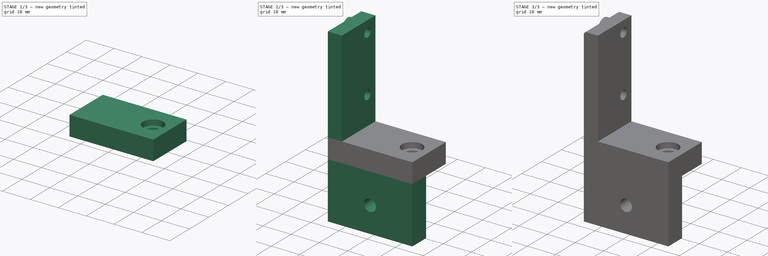
[diagram: build sequence overview — one tinted view per stage of 3, left to right]
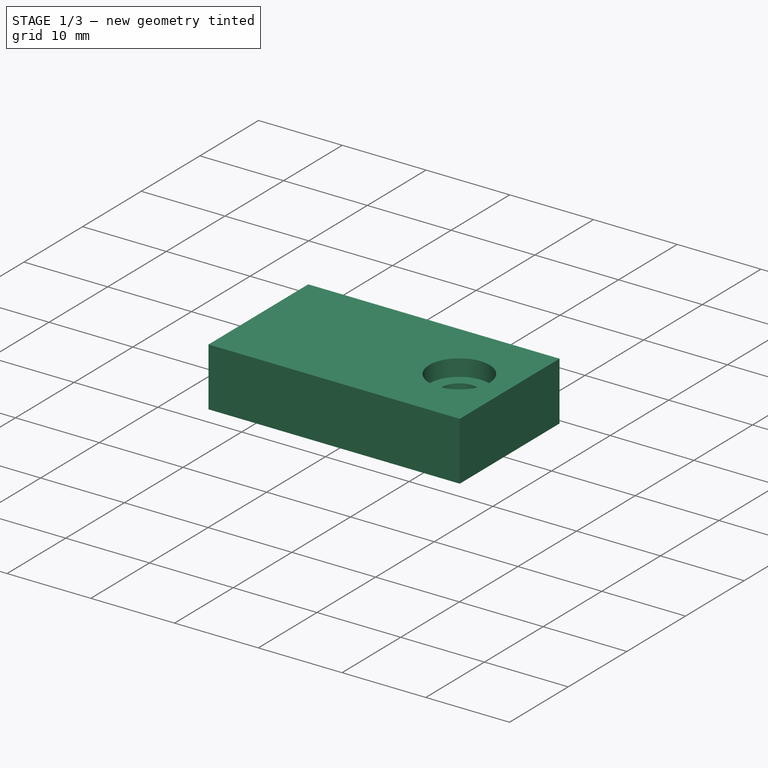
[diagram: stage 1 of 3 — iso view after this stage's code; geometry added in this stage tinted green]
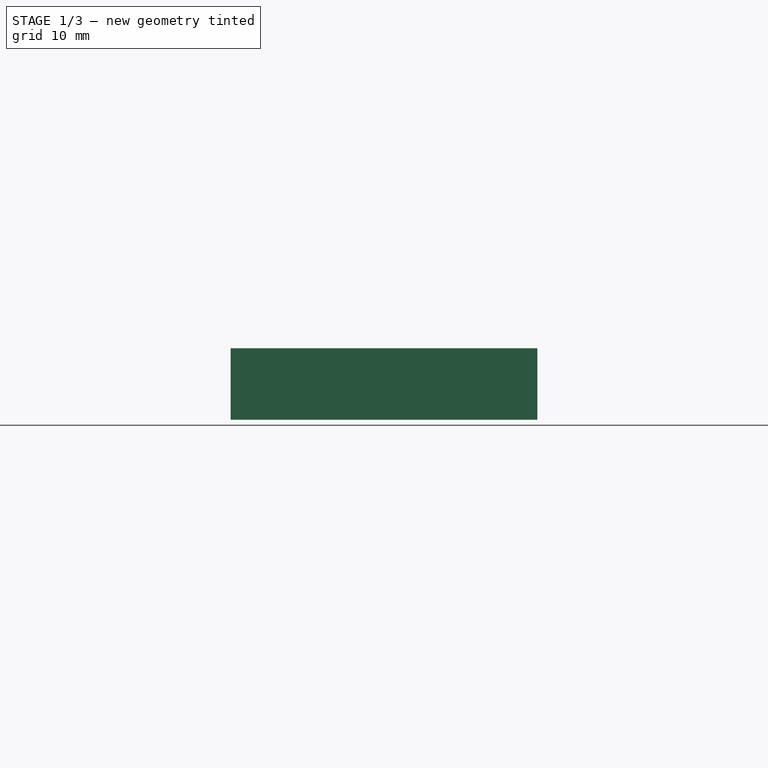
[diagram: stage 1 of 3 — front view after this stage's code; geometry added in this stage tinted green]
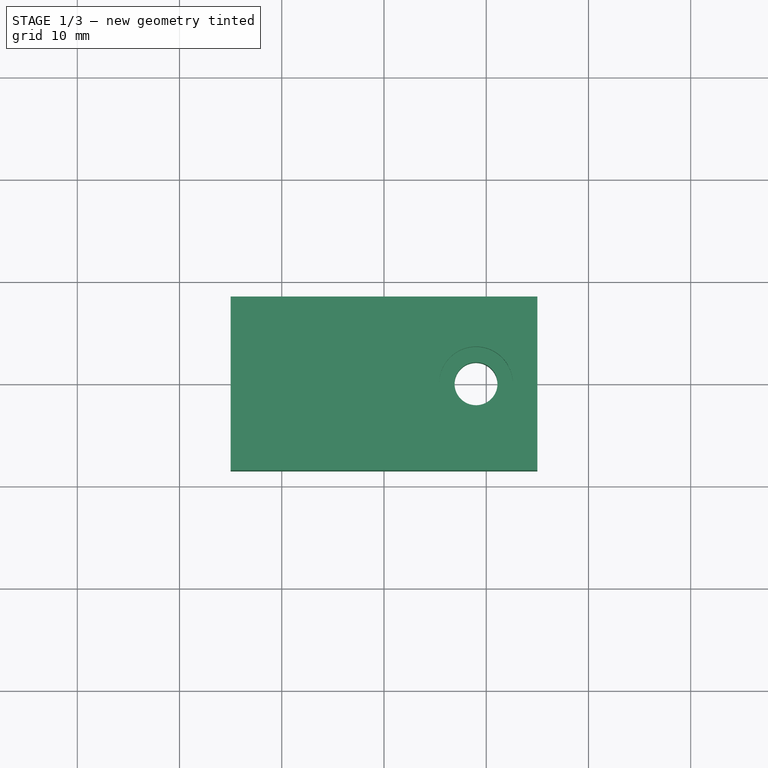
[diagram: stage 1 of 3 — top view after this stage's code; geometry added in this stage tinted green]
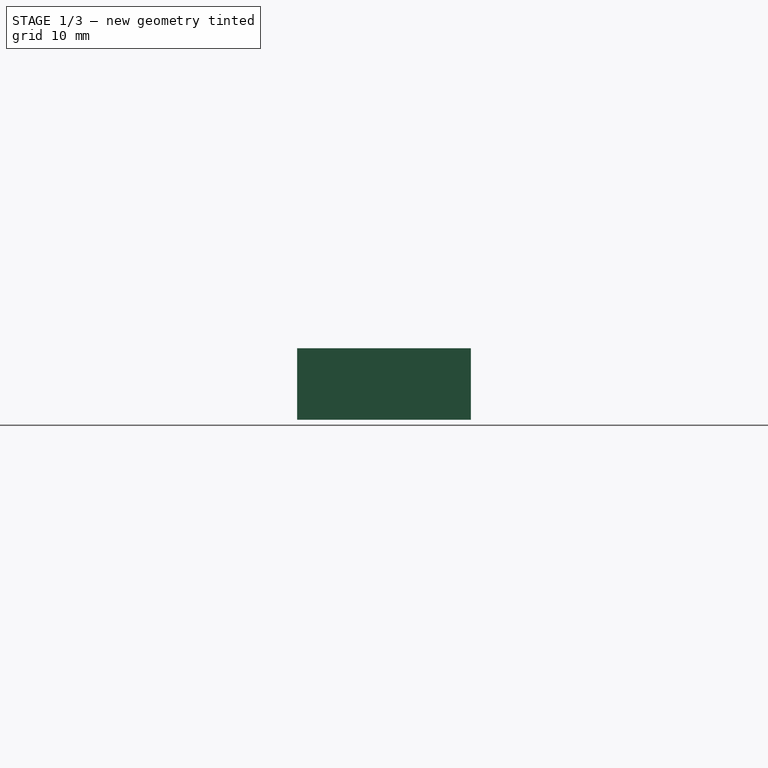
[diagram: stage 1 of 3 — right view after this stage's code; geometry added in this stage tinted green]
FCSTD DOCUMENT  (FreeCAD 0.16R6705 (Git))
Label: z-endstop-mount17
License: All rights reserved
LicenseURL: http://de.wikipedia.org/wiki/Alle_Rechte_vorbehalten
objects: Sketcher::SketchObject×6, PartDesign::Pad×4, PartDesign::Pocket×2, Part::Fillet×1
note: 19 computed .brp shape members not serialized (recipe doc carries the construction recipe); baked Part::Feature solids carry a one-line shape summary decoded from their .brp

FEATURE [Sketcher::SketchObject] Sketch
  sketch-geometry (5):
    g0: LineSegment StartX=-15 StartY=8.5 StartZ=0 EndX=15 EndY=8.5 EndZ=0
    g1: LineSegment StartX=15 StartY=8.5 StartZ=0 EndX=15 EndY=-8.5 EndZ=0
    g2: LineSegment StartX=15 StartY=-8.5 StartZ=0 EndX=-15 EndY=-8.5 EndZ=0
    g3: LineSegment StartX=-15 StartY=-8.5 StartZ=0 EndX=-15 EndY=8.5 EndZ=0
    g4: Circle CenterX=9 CenterY=0 CenterZ=0 NormalX=0 NormalY=0 NormalZ=1 Radius=2.1
  constraints (15):
    c: Coincident(g0,g1)
    c: Coincident(g1,g2)
    c: Coincident(g2,g3)
    c: Coincident(g3,g0)
    c: Horizontal(g0)
    c: Horizontal(g2)
    c: Vertical(g1)
    c: Vertical(g3)
    c: Symmetric(g1,g2,g-2)
    c: Symmetric(g0,g1,g-1)
    c: DistanceY(g3,g3) = 17
    c: PointOnObject(g4,g-1)
    c: Radius(g4) = 2.1
    c: DistanceX(g4,g0) = 6
    c: DistanceX(g0,g0) = 30
FEATURE [PartDesign::Pad] Pad
  Length = 7
  Length2 = 100
  Sketch = -> Sketch
  Type = 0
FEATURE [Sketcher::SketchObject] Sketch001
  ExternalGeometry = -> [Pad]
  Placement = pos=(0,0,7) rot=(0,0,1;0rad)
  Support = -> Pad [Face7]
  sketch-geometry (1):
    g0: Circle CenterX=9 CenterY=0 CenterZ=0 NormalX=0 NormalY=0 NormalZ=1 Radius=3.6
  constraints (2):
    c: Coincident(g0,g-3)
    c: Radius(g0) = 3.6
FEATURE [PartDesign::Pocket] Pocket
  Length = 2
  Sketch = -> Sketch001
  Type = 0
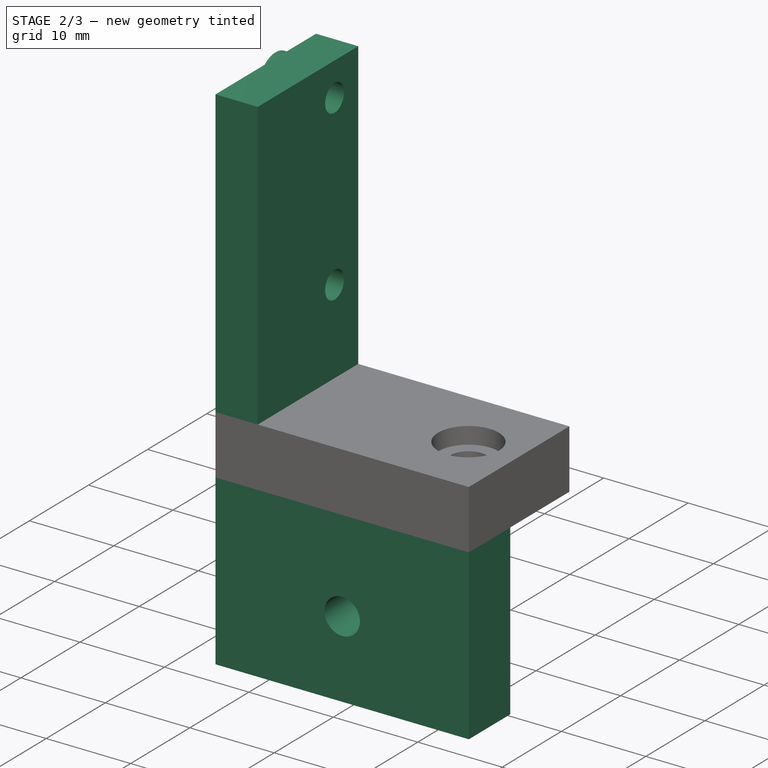
[diagram: stage 2 of 3 — iso view after this stage's code; geometry added in this stage tinted green]
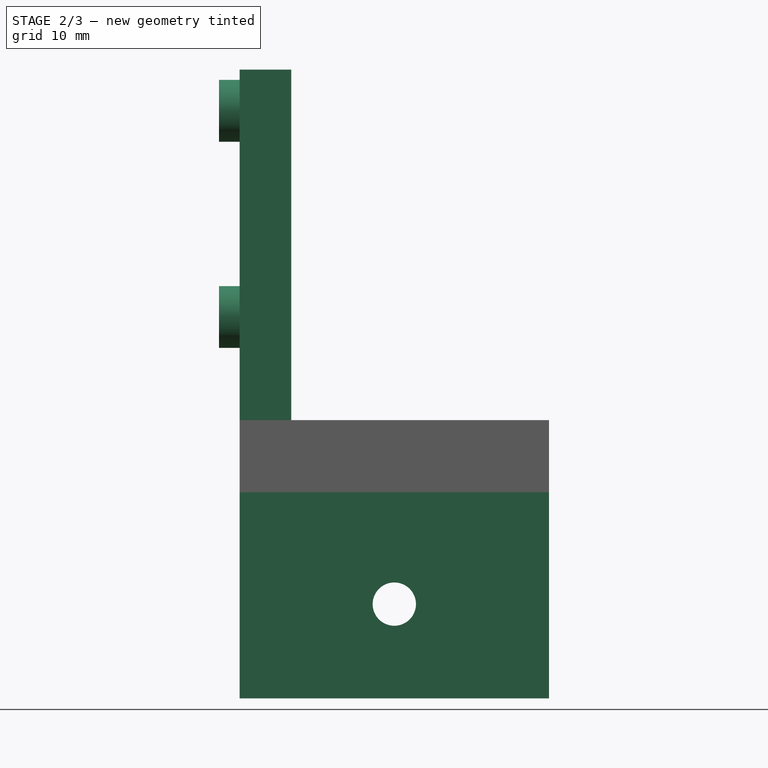
[diagram: stage 2 of 3 — front view after this stage's code; geometry added in this stage tinted green]
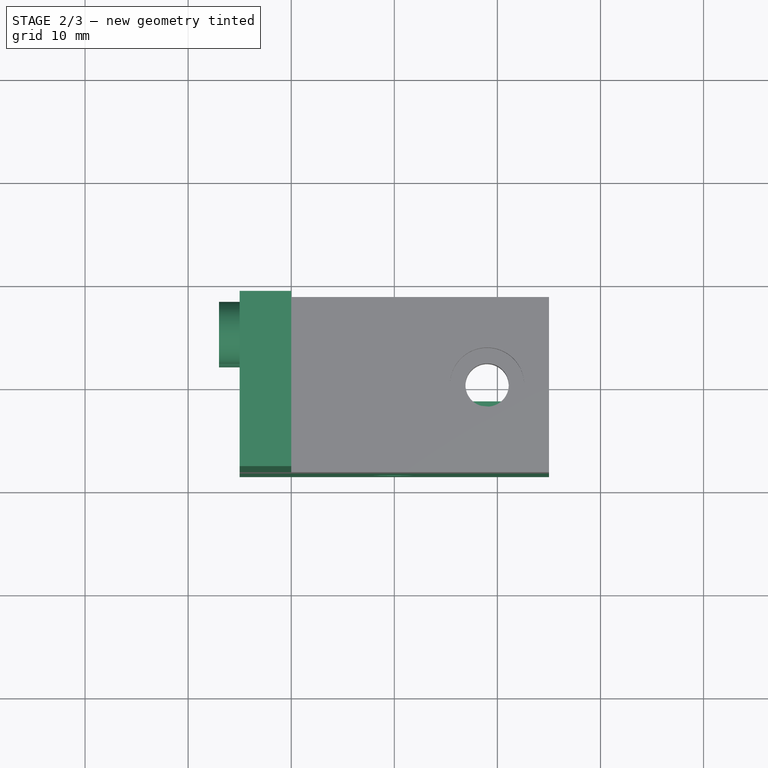
[diagram: stage 2 of 3 — top view after this stage's code; geometry added in this stage tinted green]
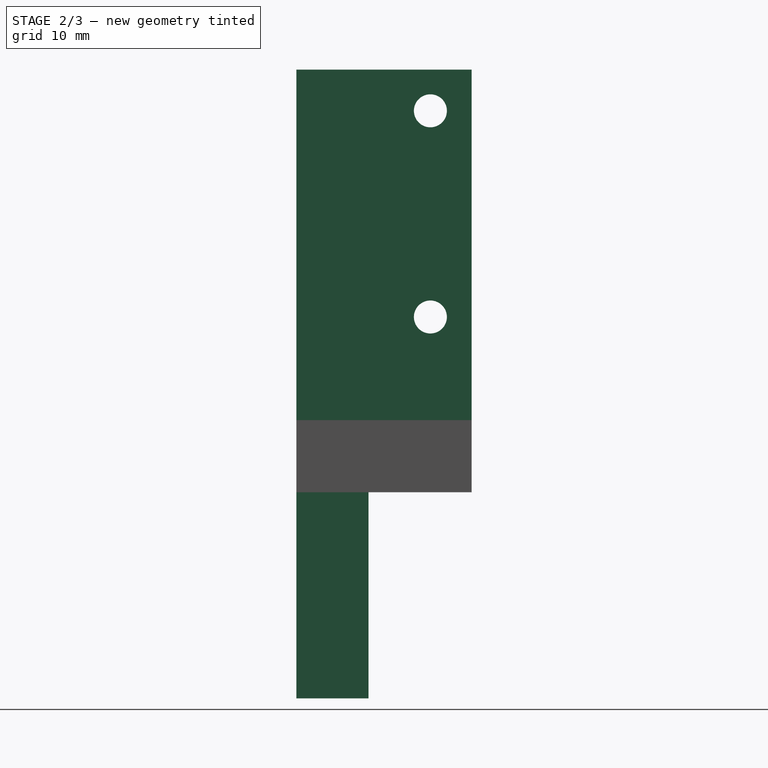
[diagram: stage 2 of 3 — right view after this stage's code; geometry added in this stage tinted green]
FEATURE [Sketcher::SketchObject] Sketch002
  ExternalGeometry = -> [Pocket]
  Placement = pos=(-15,0,0) rot=(0.57735,-0.57735,-0.57735;2.0944rad)
  Support = -> Pocket [Face2]
  sketch-geometry (6):
    g0: LineSegment StartX=-8.5 StartY=7 StartZ=0 EndX=8.5 EndY=7 EndZ=0
    g1: LineSegment StartX=8.5 StartY=7 StartZ=0 EndX=8.5 EndY=41 EndZ=0
    g2: LineSegment StartX=8.5 StartY=41 StartZ=0 EndX=-8.5 EndY=41 EndZ=0
    g3: LineSegment StartX=-8.5 StartY=41 StartZ=0 EndX=-8.5 EndY=7 EndZ=0
    g4: Circle CenterX=-4.5 CenterY=37 CenterZ=0 NormalX=0 NormalY=0 NormalZ=1 Radius=1.6
    g5: Circle CenterX=-4.5 CenterY=17 CenterZ=0 NormalX=0 NormalY=0 NormalZ=1 Radius=1.6
  constraints (17):
    c: Coincident(g0,g1)
    c: Coincident(g1,g2)
    c: Coincident(g2,g3)
    c: Coincident(g3,g0)
    c: Horizontal(g0)
    c: Horizontal(g2)
    c: Vertical(g1)
    c: Vertical(g3)
    c: Coincident(g0,g-3)
    c: Coincident(g0,g-3)
    c: DistanceY(g1,g1) = 34
    c: Equal(g5,g4)
    c: Radius(g5) = 1.6
    c: DistanceY(g4,g2) = 4
    c: DistanceY(g5,g4) = 20
    c: DistanceX(g2,g4) = 4
    c: DistanceX(g0,g5) = 4
FEATURE [PartDesign::Pad] Pad001
  Length = 5
  Length2 = 100
  Reversed = true
  Sketch = -> Sketch002
  Type = 0
FEATURE [Sketcher::SketchObject] Sketch003
  ExternalGeometry = -> [Pad001]
  Placement = pos=(-15,0,0) rot=(0.57735,-0.57735,-0.57735;2.0944rad)
  Support = -> Pad001 [Face10]
  sketch-geometry (4):
    g0: Circle CenterX=-4.5 CenterY=37 CenterZ=0 NormalX=0 NormalY=0 NormalZ=1 Radius=1.6
    g1: Circle CenterX=-4.5 CenterY=37 CenterZ=0 NormalX=0 NormalY=0 NormalZ=1 Radius=3
    g2: Circle CenterX=-4.5 CenterY=17 CenterZ=0 NormalX=0 NormalY=0 NormalZ=1 Radius=1.6
    g3: Circle CenterX=-4.5 CenterY=17 CenterZ=0 NormalX=0 NormalY=0 NormalZ=1 Radius=3
  constraints (8):
    c: Coincident(g0,g-3)
    c: Coincident(g1,g0)
    c: Coincident(g2,g-4)
    c: Coincident(g3,g2)
    c: Equal(g2,g-4)
    c: Equal(g0,g-3)
    c: Equal(g1,g3)
    c: Radius(g3) = 3
FEATURE [PartDesign::Pad] Pad002
  Length = 2
  Length2 = 100
  Sketch = -> Sketch003
  Type = 0
FEATURE [Sketcher::SketchObject] Sketch004
  ExternalGeometry = -> [Pad002]
  Placement = pos=(0,-8.5,0) rot=(1,0,0;1.5708rad)
  Support = -> Pad002 [Face4]
  sketch-geometry (5):
    g0: LineSegment StartX=-15 StartY=0 StartZ=0 EndX=15 EndY=0 EndZ=0
    g1: LineSegment StartX=15 StartY=0 StartZ=0 EndX=15 EndY=-20 EndZ=0
    g2: LineSegment StartX=15 StartY=-20 StartZ=0 EndX=-15 EndY=-20 EndZ=0
    g3: LineSegment StartX=-15 StartY=-20 StartZ=0 EndX=-15 EndY=0 EndZ=0
    g4: Circle CenterX=0 CenterY=-10.8519 CenterZ=0 NormalX=0 NormalY=0 NormalZ=1 Radius=2.1
  constraints (13):
    c: Coincident(g0,g1)
    c: Coincident(g1,g2)
    c: Coincident(g2,g3)
    c: Coincident(g3,g0)
    c: Horizontal(g0)
    c: Horizontal(g2)
    c: Vertical(g1)
    c: Vertical(g3)
    c: Coincident(g0,g-3)
    c: Coincident(g0,g-3)
    c: DistanceY(g1,g1) = 20
    c: PointOnObject(g4,g-2)
    c: Radius(g4) = 2.1
FEATURE [PartDesign::Pad] Pad003
  Length = 7
  Length2 = 100
  Reversed = true
  Sketch = -> Sketch004
  Type = 0
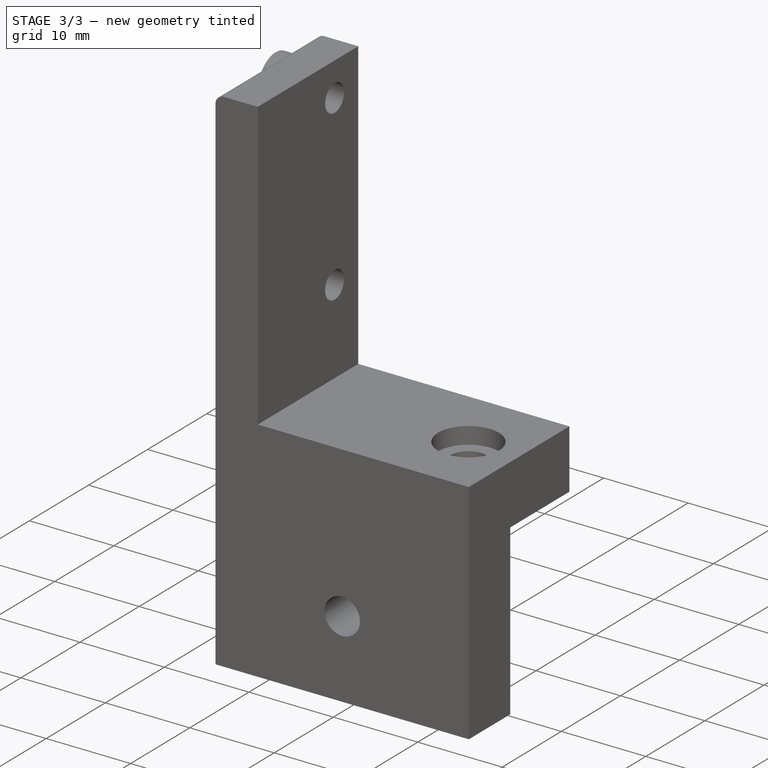
[diagram: stage 3 of 3 — iso view after this stage's code; geometry added in this stage tinted green]
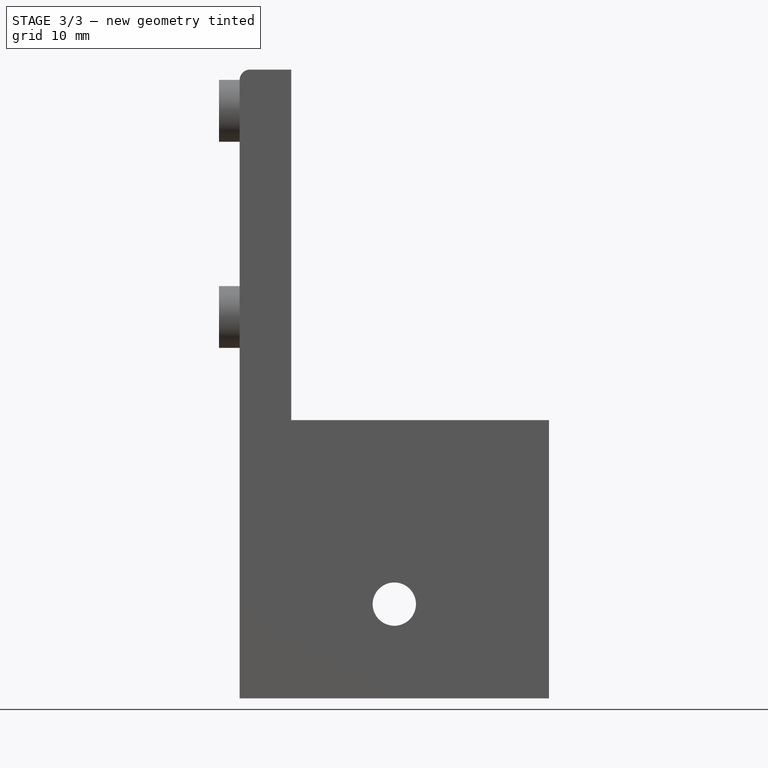
[diagram: stage 3 of 3 — front view after this stage's code; geometry added in this stage tinted green]
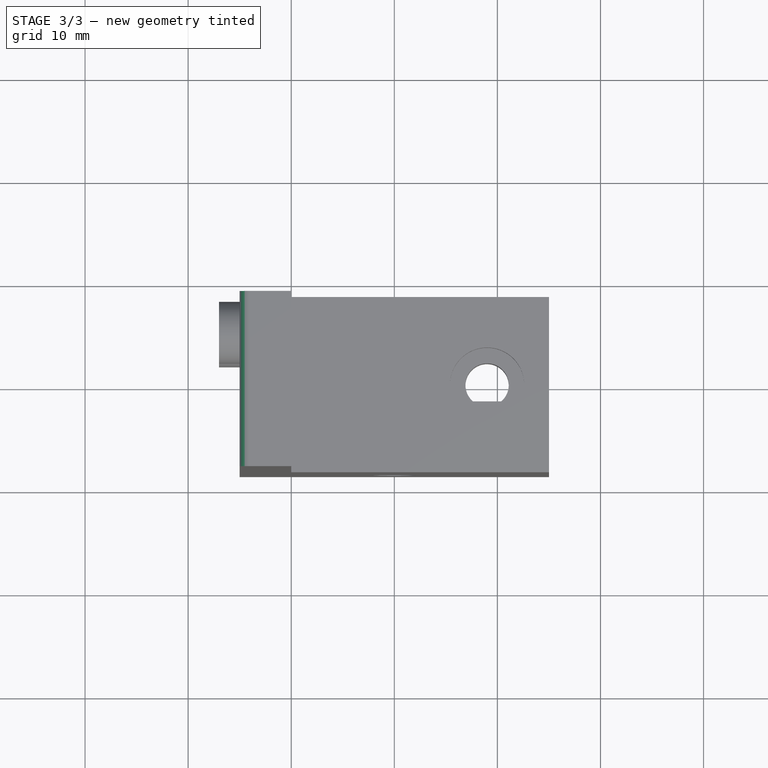
[diagram: stage 3 of 3 — top view after this stage's code; geometry added in this stage tinted green]
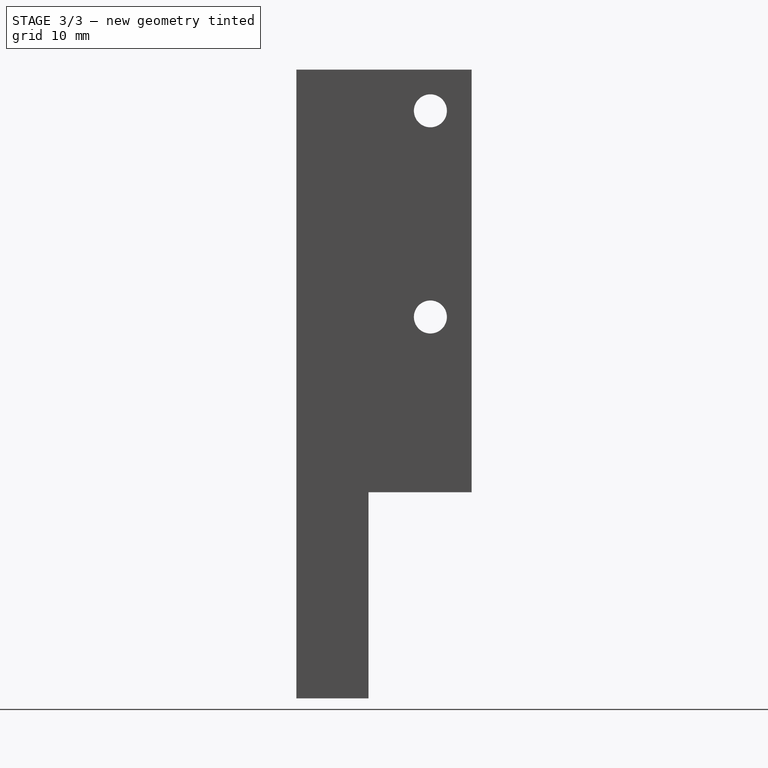
[diagram: stage 3 of 3 — right view after this stage's code; geometry added in this stage tinted green]
FEATURE [Sketcher::SketchObject] Sketch005
  ExternalGeometry = -> [Pad003]
  Placement = pos=(0,-1.5,0) rot=(0,0.707107,0.707107;3.14159rad)
  Support = -> Pad003 [Face10]
  sketch-geometry (1):
    g0: Circle CenterX=0 CenterY=-10.8519 CenterZ=0 NormalX=0 NormalY=0 NormalZ=1 Radius=3.6
  constraints (1):
    c: Radius(g0) = 3.6
FEATURE [PartDesign::Pocket] Pocket001
  Length = 2
  Sketch = -> Sketch005
  Type = 0
FEATURE [Part::Fillet] Fillet
  Base = -> Pocket001
  Edges = 1 edges r=1: [Edge30]
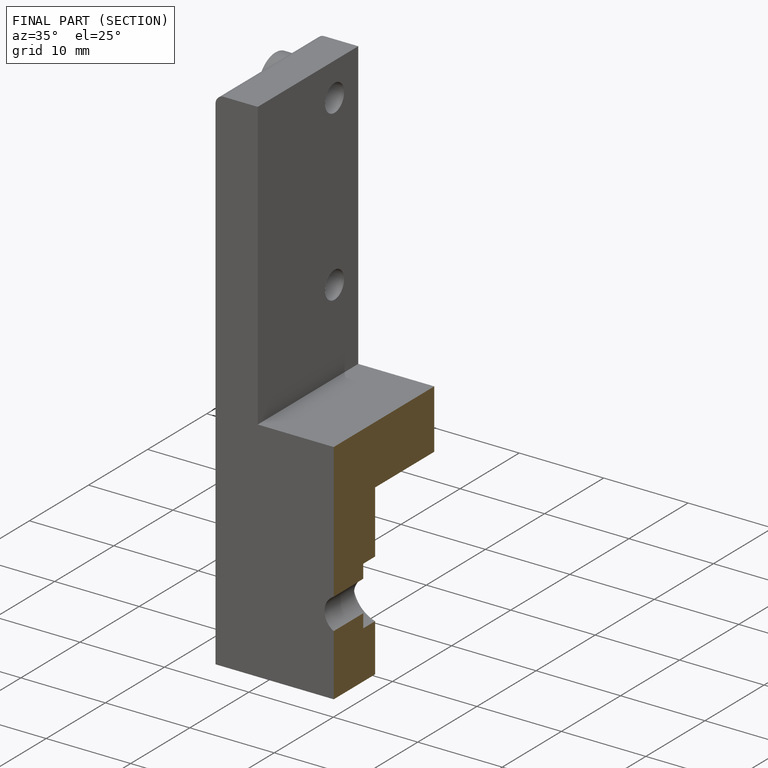
[diagram: finished part — half-section view (interior)]
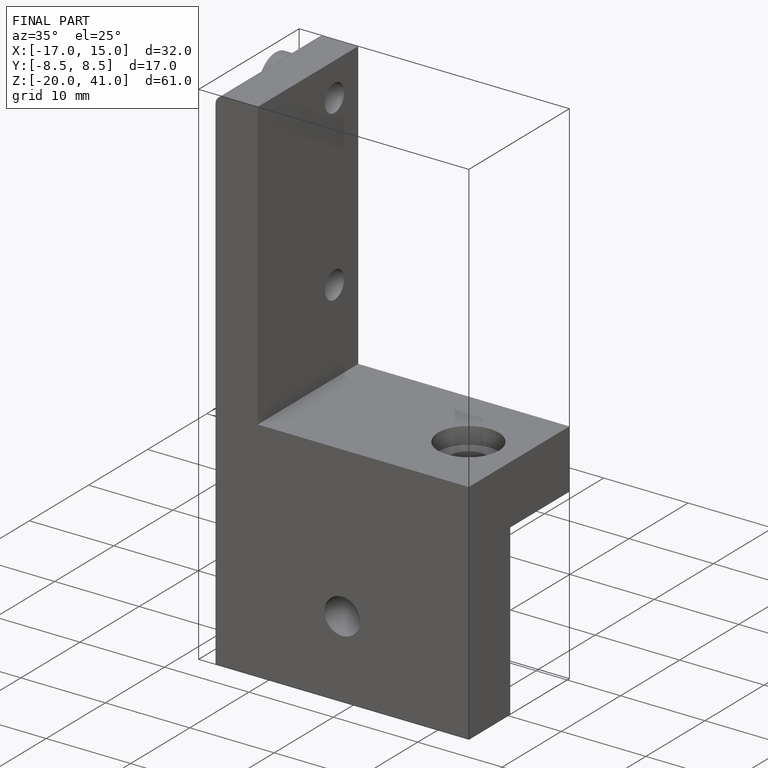
[diagram: finished part — iso view with bounding-box wireframe]
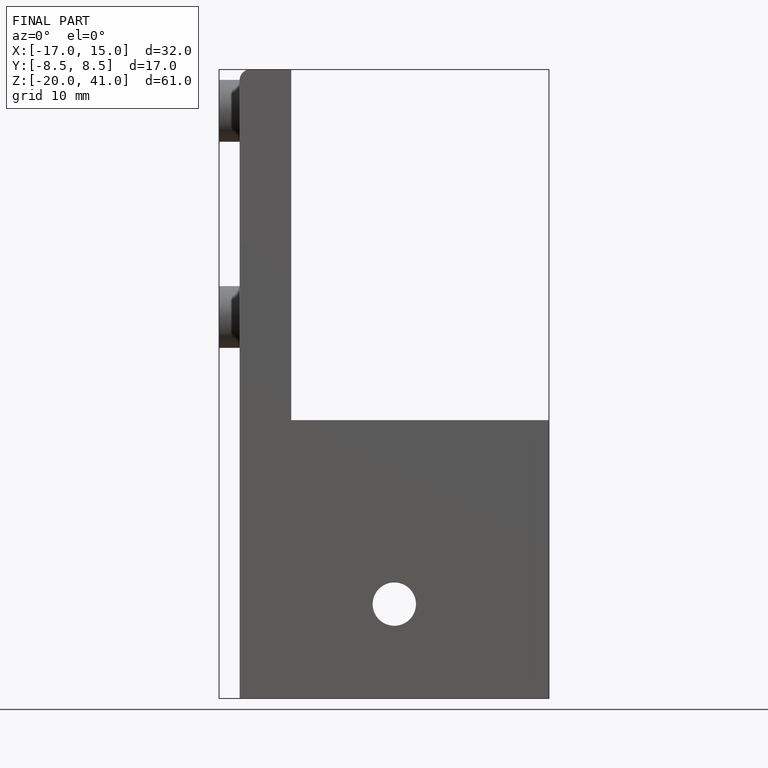
[diagram: finished part — front view with bounding-box wireframe]
